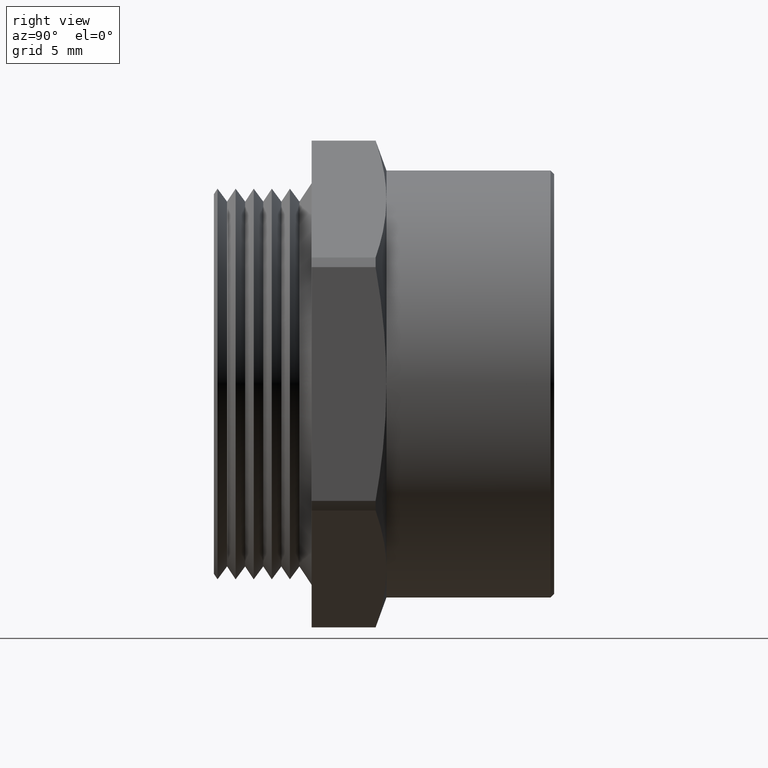
[diagram: clean part render]
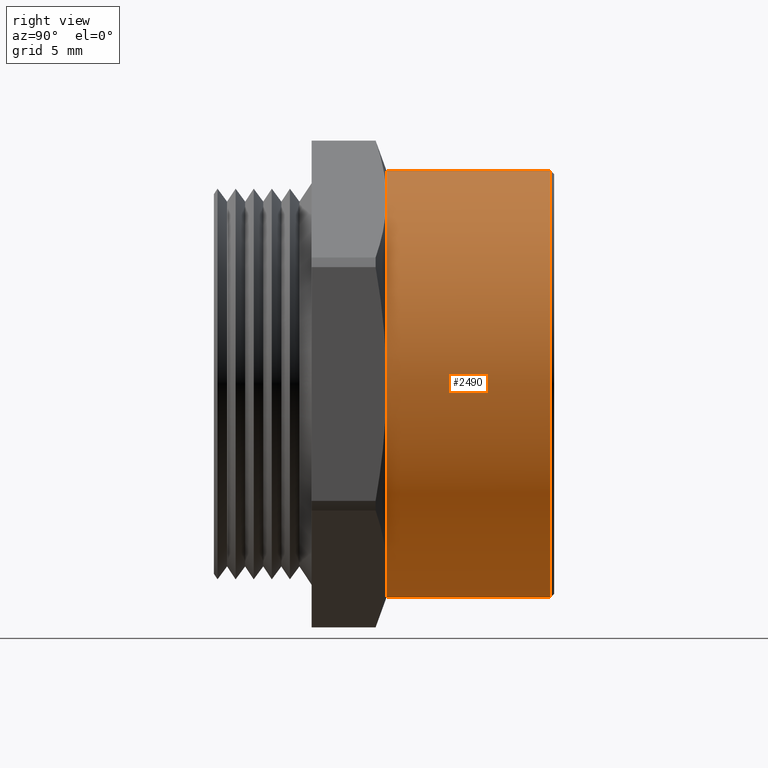
[diagram: same view with one face highlighted and labeled with its STEP entity id]
A machine part, right view. The second image highlights one B-rep face of the part: STEP entity #2490.
In plain terms, the highlighted cylindrical surface (partial cylindrical patch) has radius 14.986 mm, axis along (0, -1, 0).
Its self-contained STEP definition (entity closure, byte-faithful):
#153 = DIRECTION ( 'NONE',  ( 0.0000000000000000000, -1.000000000000000000, 0.0000000000000000000 ) ) ;
#154 = VECTOR ( 'NONE', #153, 39.37007874015748100 ) ;
#155 = CARTESIAN_POINT ( 'NONE',  ( 0.0000000000000000000, 0.0000000000000000000, -0.5899999999999999700 ) ) ;
#156 = LINE ( 'NONE', #155, #154 ) ;
#554 = CARTESIAN_POINT ( 'NONE',  ( 0.2950000000000000400, 0.4768000000000000000, 0.5109549882328189300 ) ) ;
#761 = CARTESIAN_POINT ( 'NONE',  ( 0.0000000000000000000, 0.9299999999999998300, -0.5899999999999999700 ) ) ;
#762 = DIRECTION ( 'NONE',  ( 0.0000000000000000000, 0.0000000000000000000, 1.000000000000000000 ) ) ;
#763 = DIRECTION ( 'NONE',  ( 0.0000000000000000000, -1.000000000000000000, 0.0000000000000000000 ) ) ;
#764 = CARTESIAN_POINT ( 'NONE',  ( 0.0000000000000000000, 0.9299999999999998300, 0.0000000000000000000 ) ) ;
#765 = AXIS2_PLACEMENT_3D ( 'NONE', #764, #763, #762 ) ;
#766 = CIRCLE ( 'NONE', #765, 0.5899999999999999700 ) ;
#767 = CARTESIAN_POINT ( 'NONE',  ( 7.225416114969383900E-017, 0.9299999999999998300, 0.5899999999999999700 ) ) ;
#1153 = CARTESIAN_POINT ( 'NONE',  ( 0.0000000000000000000, 0.4768000000000000000, -0.5899999999999999700 ) ) ;
#1154 = DIRECTION ( 'NONE',  ( 0.0000000000000000000, 0.0000000000000000000, -1.000000000000000000 ) ) ;
#1155 = DIRECTION ( 'NONE',  ( 0.0000000000000000000, -1.000000000000000000, 0.0000000000000000000 ) ) ;
#1156 = CARTESIAN_POINT ( 'NONE',  ( 0.0000000000000000000, 0.4768000000000000000, 0.0000000000000000000 ) ) ;
#1157 = AXIS2_PLACEMENT_3D ( 'NONE', #1156, #1155, #1154 ) ;
#1158 = CIRCLE ( 'NONE', #1157, 0.5899999999999999700 ) ;
#1164 = CARTESIAN_POINT ( 'NONE',  ( 0.2950000000000000400, 0.4768000000000000000, -0.5109549882328192600 ) ) ;
#1165 = CARTESIAN_POINT ( 'NONE',  ( 7.225416114969383900E-017, 0.4768000000000000000, 0.5899999999999999700 ) ) ;
#1166 = DIRECTION ( 'NONE',  ( 0.0000000000000000000, 0.0000000000000000000, -1.000000000000000000 ) ) ;
#1167 = DIRECTION ( 'NONE',  ( 0.0000000000000000000, -1.000000000000000000, 0.0000000000000000000 ) ) ;
#1168 = CARTESIAN_POINT ( 'NONE',  ( 0.0000000000000000000, 0.4768000000000000000, 0.0000000000000000000 ) ) ;
#1169 = AXIS2_PLACEMENT_3D ( 'NONE', #1168, #1167, #1166 ) ;
#1170 = CIRCLE ( 'NONE', #1169, 0.5899999999999999700 ) ;
#1183 = DIRECTION ( 'NONE',  ( 0.0000000000000000000, -1.000000000000000000, 0.0000000000000000000 ) ) ;
#1184 = VECTOR ( 'NONE', #1183, 39.37007874015748100 ) ;
#1185 = CARTESIAN_POINT ( 'NONE',  ( 7.225416114969383900E-017, 0.0000000000000000000, 0.5899999999999999700 ) ) ;
#1186 = LINE ( 'NONE', #1185, #1184 ) ;
#1192 = DIRECTION ( 'NONE',  ( 0.0000000000000000000, 0.0000000000000000000, -1.000000000000000000 ) ) ;
#1193 = DIRECTION ( 'NONE',  ( 0.0000000000000000000, -1.000000000000000000, 0.0000000000000000000 ) ) ;
#1194 = CARTESIAN_POINT ( 'NONE',  ( 0.0000000000000000000, 0.0000000000000000000, 0.0000000000000000000 ) ) ;
#1195 = AXIS2_PLACEMENT_3D ( 'NONE', #1194, #1193, #1192 ) ;
#1196 = CYLINDRICAL_SURFACE ( 'NONE', #1195, 0.5899999999999999700 ) ;
#1197 = FACE_OUTER_BOUND ( 'NONE', #2494, .T. ) ;
#1209 = DIRECTION ( 'NONE',  ( 0.0000000000000000000, 0.0000000000000000000, -1.000000000000000000 ) ) ;
#1210 = DIRECTION ( 'NONE',  ( 0.0000000000000000000, -1.000000000000000000, 0.0000000000000000000 ) ) ;
#1211 = CARTESIAN_POINT ( 'NONE',  ( 0.0000000000000000000, 0.4768000000000000000, 0.0000000000000000000 ) ) ;
#1212 = AXIS2_PLACEMENT_3D ( 'NONE', #1211, #1210, #1209 ) ;
#1213 = CIRCLE ( 'NONE', #1212, 0.5899999999999999700 ) ;
#1247 = DIRECTION ( 'NONE',  ( 0.0000000000000000000, 0.0000000000000000000, -1.000000000000000000 ) ) ;
#1248 = DIRECTION ( 'NONE',  ( 0.0000000000000000000, -1.000000000000000000, 0.0000000000000000000 ) ) ;
#1249 = CARTESIAN_POINT ( 'NONE',  ( 0.0000000000000000000, 0.4768000000000000000, 0.0000000000000000000 ) ) ;
#1250 = AXIS2_PLACEMENT_3D ( 'NONE', #1249, #1248, #1247 ) ;
#1251 = CIRCLE ( 'NONE', #1250, 0.5899999999999999700 ) ;
#1256 = CARTESIAN_POINT ( 'NONE',  ( 0.5899999999999999700, 0.4768000000000000000, 1.182924880895400000E-016 ) ) ;
#1854 = EDGE_CURVE ( 'NONE', #2271, #2479, #156, .T. ) ;
#2175 = VERTEX_POINT ( 'NONE', #554 ) ;
#2227 = ORIENTED_EDGE ( 'NONE', *, *, #1854, .F. ) ;
#2268 = VERTEX_POINT ( 'NONE', #767 ) ;
#2270 = EDGE_CURVE ( 'NONE', #2271, #2268, #766, .T. ) ;
#2271 = VERTEX_POINT ( 'NONE', #761 ) ;
#2472 = EDGE_CURVE ( 'NONE', #2175, #2473, #1170, .T. ) ;
#2473 = VERTEX_POINT ( 'NONE', #1165 ) ;
#2476 = VERTEX_POINT ( 'NONE', #1164 ) ;
#2477 = ORIENTED_EDGE ( 'NONE', *, *, #2478, .F. ) ;
#2478 = EDGE_CURVE ( 'NONE', #2479, #2476, #1158, .T. ) ;
#2479 = VERTEX_POINT ( 'NONE', #1153 ) ;
#2483 = EDGE_CURVE ( 'NONE', #2476, #2523, #1213, .T. ) ;
#2490 = ADVANCED_FACE ( 'NONE', ( #1197 ), #1196, .T. ) ;
#2494 = EDGE_LOOP ( 'NONE', ( #2495, #2496, #2527, #2524, #2498, #2477, #2227 ) ) ;
#2495 = ORIENTED_EDGE ( 'NONE', *, *, #2270, .T. ) ;
#2496 = ORIENTED_EDGE ( 'NONE', *, *, #2497, .T. ) ;
#2497 = EDGE_CURVE ( 'NONE', #2268, #2473, #1186, .T. ) ;
#2498 = ORIENTED_EDGE ( 'NONE', *, *, #2483, .F. ) ;
#2523 = VERTEX_POINT ( 'NONE', #1256 ) ;
#2524 = ORIENTED_EDGE ( 'NONE', *, *, #2526, .F. ) ;
#2526 = EDGE_CURVE ( 'NONE', #2523, #2175, #1251, .T. ) ;
#2527 = ORIENTED_EDGE ( 'NONE', *, *, #2472, .F. ) ;